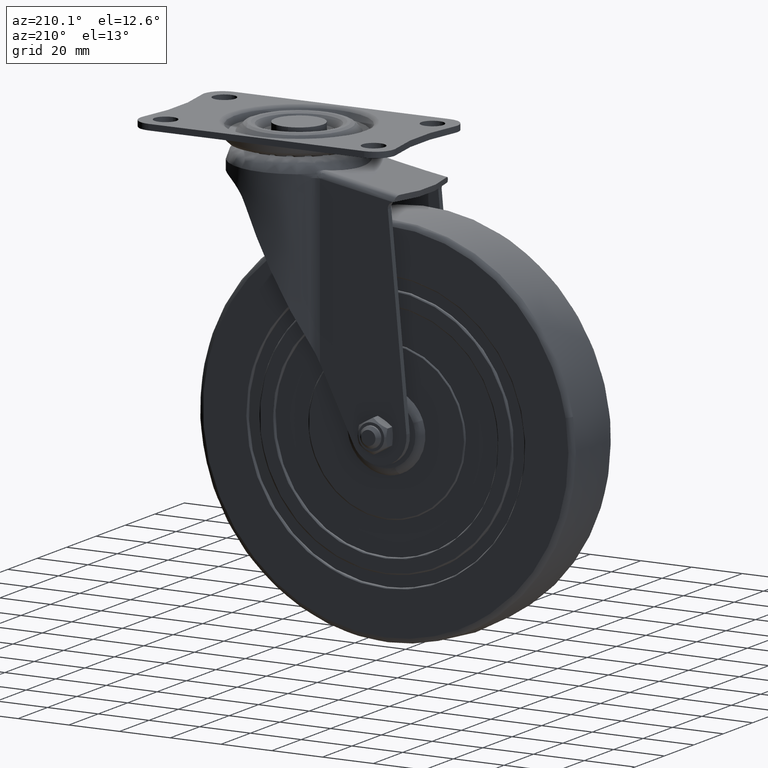
[diagram: clean part render]
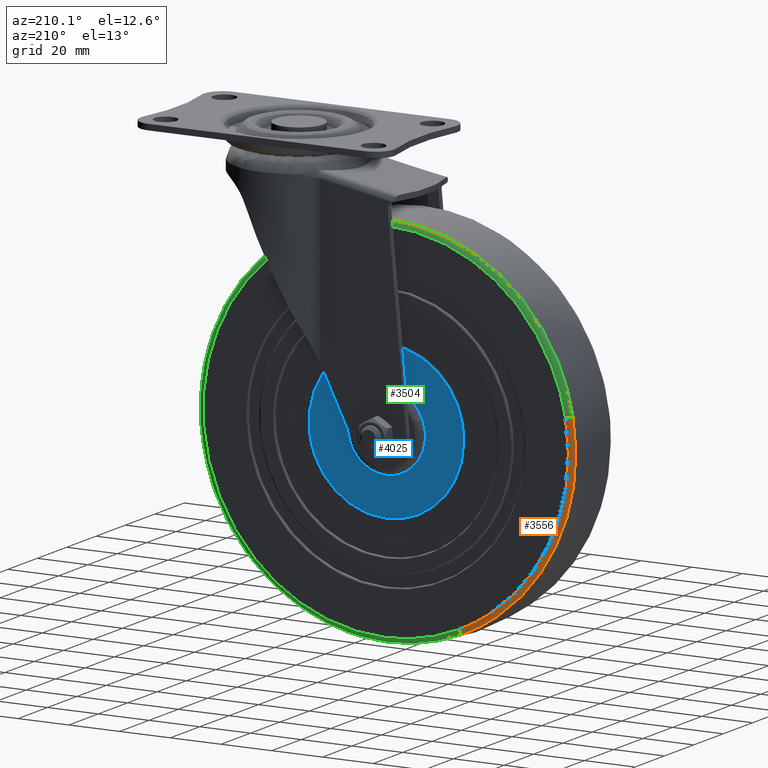
[diagram: same view with three faces highlighted in distinct colors, each labeled with its STEP entity id]
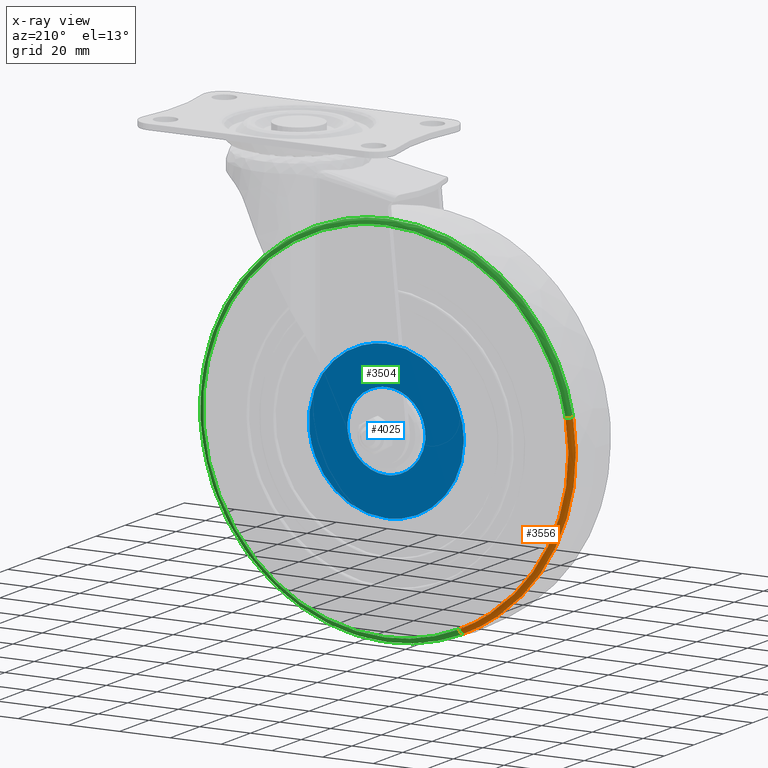
[diagram: x-ray of the same camera — body ghosted, the three highlighted faces saturated]
A machine part, auxiliary view with three faces highlighted in distinct colors.
The next image is the same camera in x-ray (body ghosted, the three faces saturated) — at least one of them is partly hidden behind the body in this view.
Their STEP definitions:

[orange] entity #3556 — the highlighted face is a freeform B-spline surface patch.
#3363=CARTESIAN_POINT('',(-28.854809798795710,13.500000000000000,-65.987537865709839));
#3364=VERTEX_POINT('',#3363);
#3397=CARTESIAN_POINT('',(-70.908834657101039,13.500000000000000,12.605251597563020));
#3398=VERTEX_POINT('',#3397);
#3412=CARTESIAN_POINT('',(-72.849599327771671,11.838240620591840,12.950255531633530));
#3413=VERTEX_POINT('',#3412);
#3414=CARTESIAN_POINT('',(-70.908834657101053,13.500000000000004,12.605251597563024));
#3415=CARTESIAN_POINT('',(-72.568855627137168,13.499999908625838,12.900348563073010));
#3416=CARTESIAN_POINT('',(-72.849599327771671,11.838240620591833,12.950255531633534));
#3424=(BOUNDED_CURVE()B_SPLINE_CURVE(2,(#3414,#3415,#3416),.UNSPECIFIED.,.F.,.U.)B_SPLINE_CURVE_WITH_KNOTS((3,3),(-1.711130036011189,-0.296086415558054),.UNSPECIFIED.)CURVE()GEOMETRIC_REPRESENTATION_ITEM()RATIONAL_B_SPLINE_CURVE((0.895978392706407,0.684212014952265,0.893829416103438))REPRESENTATION_ITEM(''));
#3425=EDGE_CURVE('',#3398,#3413,#3424,.T.);
#3474=CARTESIAN_POINT('',(-29.644561133255561,11.838247859935610,-67.793605779034408));
#3475=VERTEX_POINT('',#3474);
#3489=CARTESIAN_POINT('',(-28.854809798795717,13.500000000000000,-65.987537865709839));
#3490=CARTESIAN_POINT('',(-29.530316721766493,13.499999887121145,-67.532342319622870));
#3491=CARTESIAN_POINT('',(-29.644561133255564,11.838247859935612,-67.793605779034422));
#3499=(BOUNDED_CURVE()B_SPLINE_CURVE(2,(#3489,#3490,#3491),.UNSPECIFIED.,.F.,.U.)B_SPLINE_CURVE_WITH_KNOTS((3,3),(-1.711130021993400,-0.296090483955597),.UNSPECIFIED.)CURVE()GEOMETRIC_REPRESENTATION_ITEM()RATIONAL_B_SPLINE_CURVE((0.825438281270302,0.630344773011582,0.823457386365818))REPRESENTATION_ITEM(''));
#3500=EDGE_CURVE('',#3364,#3475,#3499,.T.);
#3505=CARTESIAN_POINT('',(-70.783795213729263,13.495963695142329,12.583023708766035));
#3506=CARTESIAN_POINT('',(-80.696572602994706,13.495963695142336,-43.179726243952558));
#3507=CARTESIAN_POINT('',(-28.803936387076099,13.495963695142340,-65.871172747445499));
#3508=CARTESIAN_POINT('',(-72.666789856030846,13.617653752101177,12.917758038226864));
#3509=CARTESIAN_POINT('',(-82.843267526666523,13.617653752101178,-44.328395836023837));
#3510=CARTESIAN_POINT('',(-29.570180380214502,13.617653752101177,-67.623481520817137));
#3511=CARTESIAN_POINT('',(-72.866861593607467,11.712074912830809,12.953324193019490));
#3512=CARTESIAN_POINT('',(-83.071357917248321,11.712074912830811,-44.450444149929943));
#3513=CARTESIAN_POINT('',(-29.651595251861433,11.712074912830813,-67.809667637964424));
#3521=(BOUNDED_SURFACE()B_SPLINE_SURFACE(2,2,((#3505,#3508,#3511),(#3506,#3509,#3512),(#3507,#3510,#3513)),.UNSPECIFIED.,.F.,.F.,.U.)B_SPLINE_SURFACE_WITH_KNOTS((3,3),(3,3),(0.0,102.552476163057800),(0.0,3.214103922017820),.UNSPECIFIED.)GEOMETRIC_REPRESENTATION_ITEM()RATIONAL_B_SPLINE_SURFACE(((0.918185783207541,0.662112204175983,0.915821651506257),(0.692284279099599,0.499212554075682,0.690501795379580),(0.845897263114436,0.609984288180309,0.843719258867004)))REPRESENTATION_ITEM('')SURFACE());
#3522=CARTESIAN_POINT('',(-70.908834657101039,13.500000000000000,12.605251597563027));
#3523=CARTESIAN_POINT('',(-72.020519245974285,13.499999999999998,6.351646741524419));
#3524=CARTESIAN_POINT('',(-72.020519245974285,13.500000000000000,1.855278E-015));
#3525=CARTESIAN_POINT('',(-72.020519245974285,13.500000000000000,-47.112180774680787));
#3526=CARTESIAN_POINT('',(-28.854809798795710,13.500000000000000,-65.987537865709839));
#3534=(BOUNDED_CURVE()B_SPLINE_CURVE(2,(#3522,#3523,#3524,#3525,#3526),.UNSPECIFIED.,.F.,.U.)B_SPLINE_CURVE_WITH_KNOTS((3,2,3),(0.719918253207211,0.750000000000000,0.931970470084947),.UNSPECIFIED.)CURVE()GEOMETRIC_REPRESENTATION_ITEM()RATIONAL_B_SPLINE_CURVE((0.937995440885135,0.964757041417315,1.0,0.786808333151291,0.883973368979806))REPRESENTATION_ITEM(''));
#3535=EDGE_CURVE('',#3398,#3364,#3534,.T.);
#3536=ORIENTED_EDGE('',*,*,#3535,.T.);
#3537=ORIENTED_EDGE('',*,*,#3500,.T.);
#3538=CARTESIAN_POINT('',(-72.849599327771671,11.838240620591840,12.950255531633537));
#3539=CARTESIAN_POINT('',(-73.991710988503002,11.838241280169708,6.525491007866152));
#3540=CARTESIAN_POINT('',(-73.991710988502987,11.838241859154600,0.000001126490995));
#3541=CARTESIAN_POINT('',(-73.991710988502987,11.838246153669742,-48.401633461310752));
#3542=CARTESIAN_POINT('',(-29.644561133255568,11.838247859935612,-67.793605779034408));
#3550=(BOUNDED_CURVE()B_SPLINE_CURVE(2,(#3538,#3539,#3540,#3541,#3542),.UNSPECIFIED.,.F.,.U.)B_SPLINE_CURVE_WITH_KNOTS((3,2,3),(0.719918255260707,0.750000000000000,0.931970471913528),.UNSPECIFIED.)CURVE()GEOMETRIC_REPRESENTATION_ITEM()RATIONAL_B_SPLINE_CURVE((0.937995444538835,0.964757043823136,1.0,0.786808331008976,0.883973370932586))REPRESENTATION_ITEM(''));
#3551=EDGE_CURVE('',#3413,#3475,#3550,.T.);
#3552=ORIENTED_EDGE('',*,*,#3551,.F.);
#3553=ORIENTED_EDGE('',*,*,#3425,.F.);
#3554=EDGE_LOOP('',(#3536,#3537,#3552,#3553));
#3555=FACE_OUTER_BOUND('',#3554,.T.);
#3556=ADVANCED_FACE('',(#3555),#3521,.T.);

[blue] entity #4025 — the highlighted face is a freeform B-spline surface patch.
#2504=CARTESIAN_POINT('',(-14.360999416007740,13.000000000062810,5.478189264606968));
#2505=VERTEX_POINT('',#2504);
#2519=CARTESIAN_POINT('',(0.0,13.0,15.370389124746049));
#2520=VERTEX_POINT('',#2519);
#2521=CARTESIAN_POINT('',(0.0,13.0,15.370389124746049));
#2522=CARTESIAN_POINT('',(-10.587491632303976,13.000000000000004,15.370389124746044));
#2523=CARTESIAN_POINT('',(-14.360999416007731,13.000000000062803,5.478189264606968));
#2531=(BOUNDED_CURVE()B_SPLINE_CURVE(2,(#2521,#2522,#2523),.UNSPECIFIED.,.F.,.U.)B_SPLINE_CURVE_WITH_KNOTS((3,3),(0.500000000000000,0.689474988083538),.UNSPECIFIED.)CURVE()GEOMETRIC_REPRESENTATION_ITEM()RATIONAL_B_SPLINE_CURVE((1.0,0.778016243422288,0.892515443902984))REPRESENTATION_ITEM(''));
#2532=EDGE_CURVE('',#2520,#2505,#2531,.T.);
#2534=CARTESIAN_POINT('',(0.0,13.0,-15.370389124746049));
#2535=VERTEX_POINT('',#2534);
#2536=CARTESIAN_POINT('',(0.0,13.0,-15.370389124746049));
#2537=CARTESIAN_POINT('',(15.370389124746044,13.0,-15.370389124746044));
#2538=CARTESIAN_POINT('',(15.370389124746049,13.0,1.855278E-015));
#2539=CARTESIAN_POINT('',(15.370389124746044,13.0,15.370389124746058));
#2540=CARTESIAN_POINT('',(0.0,13.0,15.370389124746049));
#2548=(BOUNDED_CURVE()B_SPLINE_CURVE(2,(#2536,#2537,#2538,#2539,#2540),.UNSPECIFIED.,.F.,.U.)B_SPLINE_CURVE_WITH_KNOTS((3,2,3),(0.0,0.250000000000000,0.500000000000000),.UNSPECIFIED.)CURVE()GEOMETRIC_REPRESENTATION_ITEM()RATIONAL_B_SPLINE_CURVE((1.0,0.707106781186547,1.0,0.707106781186547,1.0))REPRESENTATION_ITEM(''));
#2549=EDGE_CURVE('',#2535,#2520,#2548,.T.);
#2551=CARTESIAN_POINT('',(-5.478189264606966,13.000000000062810,-14.360999416007740));
#2552=VERTEX_POINT('',#2551);
#2553=CARTESIAN_POINT('',(-5.478189264606966,13.000000000062808,-14.360999416007738));
#2554=CARTESIAN_POINT('',(-2.832087730530188,13.000000000000004,-15.370389124746055));
#2555=CARTESIAN_POINT('',(0.0,13.0,-15.370389124746049));
#2563=(BOUNDED_CURVE()B_SPLINE_CURVE(2,(#2553,#2554,#2555),.UNSPECIFIED.,.F.,.U.)B_SPLINE_CURVE_WITH_KNOTS((3,3),(0.939474988083538,1.0),.UNSPECIFIED.)CURVE()GEOMETRIC_REPRESENTATION_ITEM()RATIONAL_B_SPLINE_CURVE((0.892515443902983,0.929090537764259,1.0))REPRESENTATION_ITEM(''));
#2564=EDGE_CURVE('',#2552,#2535,#2563,.T.);
#2615=CARTESIAN_POINT('',(-14.360999416007738,13.000000000062808,5.478189264606967));
#2616=CARTESIAN_POINT('',(-15.370389124746055,13.000000000000004,2.832087730530190));
#2617=CARTESIAN_POINT('',(-15.370389124746049,13.0,1.855278E-015));
#2618=CARTESIAN_POINT('',(-15.370389124746046,12.999999999999995,-10.587491632303895));
#2619=CARTESIAN_POINT('',(-5.478189264606966,13.000000000062800,-14.360999416007731));
#2627=(BOUNDED_CURVE()B_SPLINE_CURVE(2,(#2615,#2616,#2617,#2618,#2619),.UNSPECIFIED.,.F.,.U.)B_SPLINE_CURVE_WITH_KNOTS((3,2,3),(0.689474988083538,0.750000000000000,0.939474988083537),.UNSPECIFIED.)CURVE()GEOMETRIC_REPRESENTATION_ITEM()RATIONAL_B_SPLINE_CURVE((0.892515443902983,0.929090537764259,1.0,0.778016243422289,0.892515443902982))REPRESENTATION_ITEM(''));
#2628=EDGE_CURVE('',#2505,#2552,#2627,.T.);
#2663=CARTESIAN_POINT('',(30.296004996149900,13.0,-3.521658996040165));
#2664=VERTEX_POINT('',#2663);
#2665=CARTESIAN_POINT('',(0.0,13.0,30.500000000000000));
#2666=VERTEX_POINT('',#2665);
#2667=CARTESIAN_POINT('',(30.296004996149897,12.999999999999996,-3.521658996040165));
#2668=CARTESIAN_POINT('',(30.500000000000000,13.000000000000004,-1.766737787514600));
#2669=CARTESIAN_POINT('',(30.500000000000000,13.0,1.855278E-015));
#2670=CARTESIAN_POINT('',(30.500000000000004,13.0,30.500000000000004));
#2671=CARTESIAN_POINT('',(0.0,13.0,30.500000000000000));
#2679=(BOUNDED_CURVE()B_SPLINE_CURVE(2,(#2667,#2668,#2669,#2670,#2671),.UNSPECIFIED.,.F.,.U.)B_SPLINE_CURVE_WITH_KNOTS((3,2,3),(0.229999999999675,0.250000000000000,0.500000000000000),.UNSPECIFIED.)CURVE()GEOMETRIC_REPRESENTATION_ITEM()RATIONAL_B_SPLINE_CURVE((0.956886118190021,0.976568542494544,1.0,0.707106781186547,1.0))REPRESENTATION_ITEM(''));
#2680=EDGE_CURVE('',#2664,#2666,#2679,.T.);
#2682=CARTESIAN_POINT('',(-30.500000007740670,13.0,5.317338E-015));
#2683=VERTEX_POINT('',#2682);
#2684=CARTESIAN_POINT('',(0.0,13.0,30.500000000000000));
#2685=CARTESIAN_POINT('',(-30.499999999999851,13.000000000000002,30.500000000000004));
#2686=CARTESIAN_POINT('',(-30.500000007740670,12.999999999999996,5.317338E-015));
#2694=(BOUNDED_CURVE()B_SPLINE_CURVE(2,(#2684,#2685,#2686),.UNSPECIFIED.,.F.,.U.)B_SPLINE_CURVE_WITH_KNOTS((3,3),(0.500000000000000,0.749999999999999),.UNSPECIFIED.)CURVE()GEOMETRIC_REPRESENTATION_ITEM()RATIONAL_B_SPLINE_CURVE((1.0,0.707106781186548,0.999999999999998))REPRESENTATION_ITEM(''));
#2695=EDGE_CURVE('',#2666,#2683,#2694,.T.);
#2783=CARTESIAN_POINT('',(0.0,13.0,-30.500000000000000));
#2784=VERTEX_POINT('',#2783);
#2785=CARTESIAN_POINT('',(0.0,13.0,-30.500000000000000));
#2786=CARTESIAN_POINT('',(27.159996875169327,13.000000000000002,-30.499999999999989));
#2787=CARTESIAN_POINT('',(30.296004996149897,12.999999999999996,-3.521658996040165));
#2795=(BOUNDED_CURVE()B_SPLINE_CURVE(2,(#2785,#2786,#2787),.UNSPECIFIED.,.F.,.U.)B_SPLINE_CURVE_WITH_KNOTS((3,3),(0.0,0.229999999999675),.UNSPECIFIED.)CURVE()GEOMETRIC_REPRESENTATION_ITEM()RATIONAL_B_SPLINE_CURVE((1.0,0.730538238692004,0.956886118190021))REPRESENTATION_ITEM(''));
#2796=EDGE_CURVE('',#2784,#2664,#2795,.T.);
#2828=CARTESIAN_POINT('',(-30.500000007740670,13.0,5.317338E-015));
#2829=CARTESIAN_POINT('',(-30.500000000000004,13.0,-30.500000000000004));
#2830=CARTESIAN_POINT('',(0.0,13.0,-30.500000000000000));
#2838=(BOUNDED_CURVE()B_SPLINE_CURVE(2,(#2828,#2829,#2830),.UNSPECIFIED.,.F.,.U.)B_SPLINE_CURVE_WITH_KNOTS((3,3),(0.750000000000000,1.0),.UNSPECIFIED.)CURVE()GEOMETRIC_REPRESENTATION_ITEM()RATIONAL_B_SPLINE_CURVE((1.0,0.707106781186547,1.0))REPRESENTATION_ITEM(''));
#2839=EDGE_CURVE('',#2683,#2784,#2838,.T.);
#4008=CARTESIAN_POINT('',(-33.546941648711552,13.0,-33.546949881770168));
#4009=CARTESIAN_POINT('',(-33.546941648711552,13.0,33.546951517917662));
#4010=CARTESIAN_POINT('',(33.546778287424637,13.0,-33.546949881770168));
#4011=CARTESIAN_POINT('',(33.546778287424637,13.0,33.546951517917662));
#4012=B_SPLINE_SURFACE_WITH_KNOTS('',1,1,((#4008,#4010),(#4009,#4011)),.UNSPECIFIED.,.F.,.F.,.U.,(2,2),(2,2),(0.0,67.093901399687837),(0.0,67.093719936136182),.UNSPECIFIED.);
#4013=ORIENTED_EDGE('',*,*,#2839,.F.);
#4014=ORIENTED_EDGE('',*,*,#2695,.F.);
#4015=ORIENTED_EDGE('',*,*,#2680,.F.);
#4016=ORIENTED_EDGE('',*,*,#2796,.F.);
#4017=EDGE_LOOP('',(#4013,#4014,#4015,#4016));
#4018=FACE_OUTER_BOUND('',#4017,.T.);
#4019=ORIENTED_EDGE('',*,*,#2549,.T.);
#4020=ORIENTED_EDGE('',*,*,#2532,.T.);
#4021=ORIENTED_EDGE('',*,*,#2628,.T.);
#4022=ORIENTED_EDGE('',*,*,#2564,.T.);
#4023=EDGE_LOOP('',(#4019,#4020,#4021,#4022));
#4024=FACE_BOUND('',#4023,.T.);
#4025=ADVANCED_FACE('',(#4018,#4024),#4012,.T.);

[green] entity #3504 — the highlighted face is a freeform B-spline surface patch.
#3328=CARTESIAN_POINT('',(-28.803927238520771,13.495963620558236,-65.871175468548572));
#3329=CARTESIAN_POINT('',(-20.985038544828061,13.495963620558236,-69.290192958630414));
#3330=CARTESIAN_POINT('',(-12.583023503607606,13.495963620558241,-70.783794059643157));
#3331=CARTESIAN_POINT('',(58.200770556035536,13.495963620558234,-83.366817563250748));
#3332=CARTESIAN_POINT('',(70.783794059643157,13.495963620558241,-12.583023503607606));
#3333=CARTESIAN_POINT('',(83.366817563250748,13.495963620558234,58.200770556035536));
#3334=CARTESIAN_POINT('',(12.583023503607606,13.495963620558241,70.783794059643157));
#3335=CARTESIAN_POINT('',(-58.200770556035515,13.495963620558234,83.366817563250748));
#3336=CARTESIAN_POINT('',(-70.783794059643157,13.495963620558241,12.583023503607617));
#3337=CARTESIAN_POINT('',(-29.570173746017513,13.617655241222124,-67.623490620906665));
#3338=CARTESIAN_POINT('',(-21.543285771378304,13.617655241222124,-71.133461340704429));
#3339=CARTESIAN_POINT('',(-12.917759032327256,13.617655241222122,-72.666795448184175));
#3340=CARTESIAN_POINT('',(59.749036415856942,13.617655241222124,-85.584554480511443));
#3341=CARTESIAN_POINT('',(72.666795448184175,13.617655241222122,-12.917759032327261));
#3342=CARTESIAN_POINT('',(85.584554480511443,13.617655241222124,59.749036415856942));
#3343=CARTESIAN_POINT('',(12.917759032327266,13.617655241222122,72.666795448184175));
#3344=CARTESIAN_POINT('',(-59.749036415856921,13.617655241222124,85.584554480511443));
#3345=CARTESIAN_POINT('',(-72.666795448184175,13.617655241222122,12.917759032327266));
#3346=CARTESIAN_POINT('',(-29.651586574932924,11.712068887978058,-67.809672133395225));
#3347=CARTESIAN_POINT('',(-21.602598910822305,11.712068887978061,-71.329306531471090));
#3348=CARTESIAN_POINT('',(-12.953324305467085,11.712068887978054,-72.866862226163519));
#3349=CARTESIAN_POINT('',(59.913537920696427,11.712068887978058,-85.820186531630625));
#3350=CARTESIAN_POINT('',(72.866862226163519,11.712068887978054,-12.953324305467097));
#3351=CARTESIAN_POINT('',(85.820186531630640,11.712068887978058,59.913537920696427));
#3352=CARTESIAN_POINT('',(12.953324305467097,11.712068887978054,72.866862226163519));
#3353=CARTESIAN_POINT('',(-59.913537920696427,11.712068887978058,85.820186531630640));
#3354=CARTESIAN_POINT('',(-72.866862226163519,11.712068887978054,12.953324305467106));
#3362=(BOUNDED_SURFACE()B_SPLINE_SURFACE(2,2,((#3328,#3337,#3346),(#3329,#3338,#3347),(#3330,#3339,#3348),(#3331,#3340,#3349),(#3332,#3341,#3350),(#3333,#3342,#3351),(#3334,#3343,#3352),(#3335,#3344,#3353),(#3336,#3345,#3354)),.UNSPECIFIED.,.F.,.F.,.U.)B_SPLINE_SURFACE_WITH_KNOTS((3,2,2,2,3),(3,3),(0.0,19.619604910320049,142.242135599820300,264.864666289320500,387.487196978820690),(0.0,3.214112324344955),.UNSPECIFIED.)GEOMETRIC_REPRESENTATION_ITEM()RATIONAL_B_SPLINE_SURFACE(((0.845897495018525,0.609983695639770,0.843720312349657),(0.875157128333191,0.631083059767753,0.872904636815526),(0.918186000854759,0.662111536426552,0.915822761030040),(0.649255547594958,0.468183557309058,0.647584484689328),(0.918186000854759,0.662111536426552,0.915822761030040),(0.649255547594958,0.468183557309058,0.647584484689328),(0.918186000854759,0.662111536426552,0.915822761030040),(0.649255547594958,0.468183557309058,0.647584484689328),(0.918186000854759,0.662111536426552,0.915822761030040)))REPRESENTATION_ITEM('')SURFACE());
#3363=CARTESIAN_POINT('',(-28.854809798795710,13.500000000000000,-65.987537865709839));
#3364=VERTEX_POINT('',#3363);
#3365=CARTESIAN_POINT('',(0.0,13.500000000000000,-72.020519245974285));
#3366=VERTEX_POINT('',#3365);
#3367=CARTESIAN_POINT('',(-28.854809798795710,13.500000000000000,-65.987537865709839));
#3368=CARTESIAN_POINT('',(-15.058094628477424,13.500000000000002,-72.020519245974299));
#3369=CARTESIAN_POINT('',(0.0,13.500000000000000,-72.020519245974285));
#3377=(BOUNDED_CURVE()B_SPLINE_CURVE(2,(#3367,#3368,#3369),.UNSPECIFIED.,.F.,.U.)B_SPLINE_CURVE_WITH_KNOTS((3,3),(0.931970470084947,1.0),.UNSPECIFIED.)CURVE()GEOMETRIC_REPRESENTATION_ITEM()RATIONAL_B_SPLINE_CURVE((0.883973368979806,0.920298448035256,1.0))REPRESENTATION_ITEM(''));
#3378=EDGE_CURVE('',#3364,#3366,#3377,.T.);
#3379=ORIENTED_EDGE('',*,*,#3378,.T.);
#3380=CARTESIAN_POINT('',(0.0,13.500000000000000,72.020519245974285));
#3381=VERTEX_POINT('',#3380);
#3382=CARTESIAN_POINT('',(0.0,13.500000000000000,-72.020519245974285));
#3383=CARTESIAN_POINT('',(72.020519245974299,13.500000000000000,-72.020519245974299));
#3384=CARTESIAN_POINT('',(72.020519245974285,13.500000000000000,1.855278E-015));
#3385=CARTESIAN_POINT('',(72.020519245974299,13.500000000000000,72.020519245974299));
#3386=CARTESIAN_POINT('',(0.0,13.500000000000000,72.020519245974285));
#3394=(BOUNDED_CURVE()B_SPLINE_CURVE(2,(#3382,#3383,#3384,#3385,#3386),.UNSPECIFIED.,.F.,.U.)B_SPLINE_CURVE_WITH_KNOTS((3,2,3),(0.0,0.250000000000000,0.500000000000000),.UNSPECIFIED.)CURVE()GEOMETRIC_REPRESENTATION_ITEM()RATIONAL_B_SPLINE_CURVE((1.0,0.707106781186548,1.0,0.707106781186548,1.0))REPRESENTATION_ITEM(''));
#3395=EDGE_CURVE('',#3366,#3381,#3394,.T.);
#3396=ORIENTED_EDGE('',*,*,#3395,.T.);
#3397=CARTESIAN_POINT('',(-70.908834657101039,13.500000000000000,12.605251597563020));
#3398=VERTEX_POINT('',#3397);
#3399=CARTESIAN_POINT('',(0.0,13.500000000000000,72.020519245974285));
#3400=CARTESIAN_POINT('',(-60.346760057934418,13.499999999999995,72.020519245974285));
#3401=CARTESIAN_POINT('',(-70.908834657101039,13.499999999999996,12.605251597563024));
#3409=(BOUNDED_CURVE()B_SPLINE_CURVE(2,(#3399,#3400,#3401),.UNSPECIFIED.,.F.,.U.)B_SPLINE_CURVE_WITH_KNOTS((3,3),(0.500000000000000,0.719918253207212),.UNSPECIFIED.)CURVE()GEOMETRIC_REPRESENTATION_ITEM()RATIONAL_B_SPLINE_CURVE((1.0,0.742349739769231,0.937995440885137))REPRESENTATION_ITEM(''));
#3410=EDGE_CURVE('',#3381,#3398,#3409,.T.);
#3411=ORIENTED_EDGE('',*,*,#3410,.T.);
#3412=CARTESIAN_POINT('',(-72.849599327771671,11.838240620591840,12.950255531633530));
#3413=VERTEX_POINT('',#3412);
#3414=CARTESIAN_POINT('',(-70.908834657101053,13.500000000000004,12.605251597563024));
#3415=CARTESIAN_POINT('',(-72.568855627137168,13.499999908625838,12.900348563073010));
#3416=CARTESIAN_POINT('',(-72.849599327771671,11.838240620591833,12.950255531633534));
#3424=(BOUNDED_CURVE()B_SPLINE_CURVE(2,(#3414,#3415,#3416),.UNSPECIFIED.,.F.,.U.)B_SPLINE_CURVE_WITH_KNOTS((3,3),(-1.711130036011189,-0.296086415558054),.UNSPECIFIED.)CURVE()GEOMETRIC_REPRESENTATION_ITEM()RATIONAL_B_SPLINE_CURVE((0.895978392706407,0.684212014952265,0.893829416103438))REPRESENTATION_ITEM(''));
#3425=EDGE_CURVE('',#3398,#3413,#3424,.T.);
#3426=ORIENTED_EDGE('',*,*,#3425,.T.);
#3427=CARTESIAN_POINT('',(0.0,11.838235294117659,73.991710988502987));
#3428=VERTEX_POINT('',#3427);
#3429=CARTESIAN_POINT('',(0.0,11.838235294117659,73.991710988502987));
#3430=CARTESIAN_POINT('',(-61.998443391022541,11.838235294117657,73.991710988502987));
#3431=CARTESIAN_POINT('',(-72.849599327771671,11.838240620591833,12.950255531633529));
#3439=(BOUNDED_CURVE()B_SPLINE_CURVE(2,(#3429,#3430,#3431),.UNSPECIFIED.,.F.,.U.)B_SPLINE_CURVE_WITH_KNOTS((3,3),(0.500000000000000,0.719918255260707),.UNSPECIFIED.)CURVE()GEOMETRIC_REPRESENTATION_ITEM()RATIONAL_B_SPLINE_CURVE((1.0,0.742349737363412,0.937995444538835))REPRESENTATION_ITEM(''));
#3440=EDGE_CURVE('',#3428,#3413,#3439,.T.);
#3441=ORIENTED_EDGE('',*,*,#3440,.F.);
#3442=CARTESIAN_POINT('',(73.496826814998201,11.838267274689390,-8.543355960407823));
#3443=VERTEX_POINT('',#3442);
#3444=CARTESIAN_POINT('',(73.496826814998201,11.838267274689384,-8.543355960407823));
#3445=CARTESIAN_POINT('',(73.991705678240933,11.838266449874318,-4.286010743532447));
#3446=CARTESIAN_POINT('',(73.991705836112587,11.838265523628040,0.000000598919800));
#3447=CARTESIAN_POINT('',(73.991708561535347,11.838249533342177,73.991711270616520));
#3448=CARTESIAN_POINT('',(0.0,11.838235294117659,73.991710988502987));
#3456=(BOUNDED_CURVE()B_SPLINE_CURVE(2,(#3444,#3445,#3446,#3447,#3448),.UNSPECIFIED.,.F.,.U.)B_SPLINE_CURVE_WITH_KNOTS((3,2,3),(0.230000090431403,0.250000000000000,0.500000000000000),.UNSPECIFIED.)CURVE()GEOMETRIC_REPRESENTATION_ITEM()RATIONAL_B_SPLINE_CURVE((0.956886296181662,0.976568648441903,1.0,0.707106781186547,1.0))REPRESENTATION_ITEM(''));
#3457=EDGE_CURVE('',#3443,#3428,#3456,.T.);
#3458=ORIENTED_EDGE('',*,*,#3457,.F.);
#3459=CARTESIAN_POINT('',(0.0,11.838248424191530,-73.991708735521001));
#3460=VERTEX_POINT('',#3459);
#3461=CARTESIAN_POINT('',(0.0,11.838248424191530,-73.991708735521001));
#3462=CARTESIAN_POINT('',(65.889037301683331,11.838257849440456,-73.991709545205723));
#3463=CARTESIAN_POINT('',(73.496826814998201,11.838267274689384,-8.543355960407823));
#3471=(BOUNDED_CURVE()B_SPLINE_CURVE(2,(#3461,#3462,#3463),.UNSPECIFIED.,.F.,.U.)B_SPLINE_CURVE_WITH_KNOTS((3,3),(0.0,0.230000090431403),.UNSPECIFIED.)CURVE()GEOMETRIC_REPRESENTATION_ITEM()RATIONAL_B_SPLINE_CURVE((1.0,0.730538132744644,0.956886296181662))REPRESENTATION_ITEM(''));
#3472=EDGE_CURVE('',#3460,#3443,#3471,.T.);
#3473=ORIENTED_EDGE('',*,*,#3472,.F.);
#3474=CARTESIAN_POINT('',(-29.644561133255561,11.838247859935610,-67.793605779034408));
#3475=VERTEX_POINT('',#3474);
#3476=CARTESIAN_POINT('',(-29.644561133255571,11.838247859935613,-67.793605779034408));
#3477=CARTESIAN_POINT('',(-15.470232163153264,11.838248424191537,-73.991708735521001));
#3478=CARTESIAN_POINT('',(0.0,11.838248424191530,-73.991708735521001));
#3486=(BOUNDED_CURVE()B_SPLINE_CURVE(2,(#3476,#3477,#3478),.UNSPECIFIED.,.F.,.U.)B_SPLINE_CURVE_WITH_KNOTS((3,3),(0.931970471913528,1.0),.UNSPECIFIED.)CURVE()GEOMETRIC_REPRESENTATION_ITEM()RATIONAL_B_SPLINE_CURVE((0.883973370932585,0.920298450177572,1.0))REPRESENTATION_ITEM(''));
#3487=EDGE_CURVE('',#3475,#3460,#3486,.T.);
#3488=ORIENTED_EDGE('',*,*,#3487,.F.);
#3489=CARTESIAN_POINT('',(-28.854809798795717,13.500000000000000,-65.987537865709839));
#3490=CARTESIAN_POINT('',(-29.530316721766493,13.499999887121145,-67.532342319622870));
#3491=CARTESIAN_POINT('',(-29.644561133255564,11.838247859935612,-67.793605779034422));
#3499=(BOUNDED_CURVE()B_SPLINE_CURVE(2,(#3489,#3490,#3491),.UNSPECIFIED.,.F.,.U.)B_SPLINE_CURVE_WITH_KNOTS((3,3),(-1.711130021993400,-0.296090483955597),.UNSPECIFIED.)CURVE()GEOMETRIC_REPRESENTATION_ITEM()RATIONAL_B_SPLINE_CURVE((0.825438281270302,0.630344773011582,0.823457386365818))REPRESENTATION_ITEM(''));
#3500=EDGE_CURVE('',#3364,#3475,#3499,.T.);
#3501=ORIENTED_EDGE('',*,*,#3500,.F.);
#3502=EDGE_LOOP('',(#3379,#3396,#3411,#3426,#3441,#3458,#3473,#3488,#3501));
#3503=FACE_OUTER_BOUND('',#3502,.T.);
#3504=ADVANCED_FACE('',(#3503),#3362,.T.);